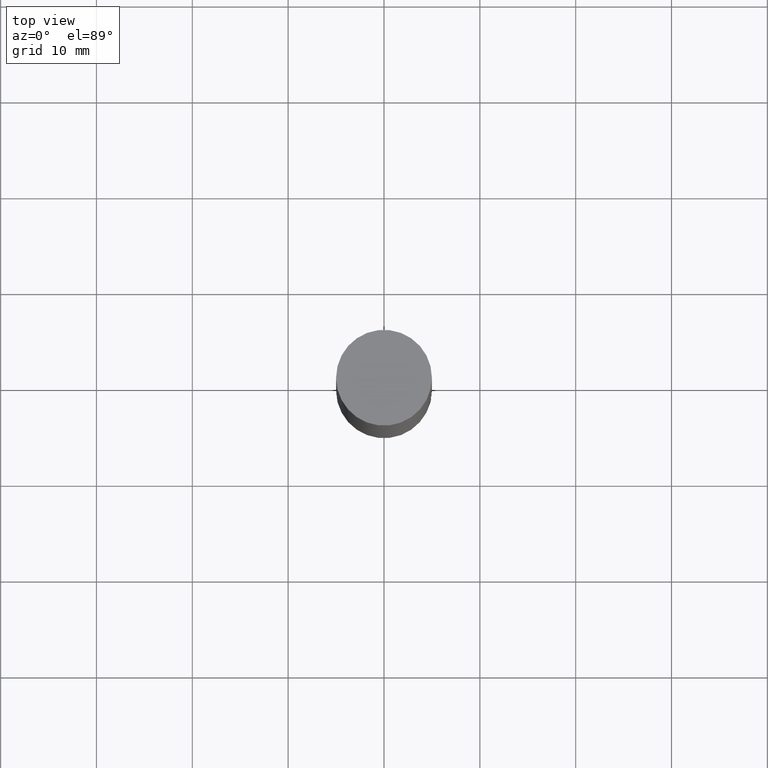
[diagram: clean part render]
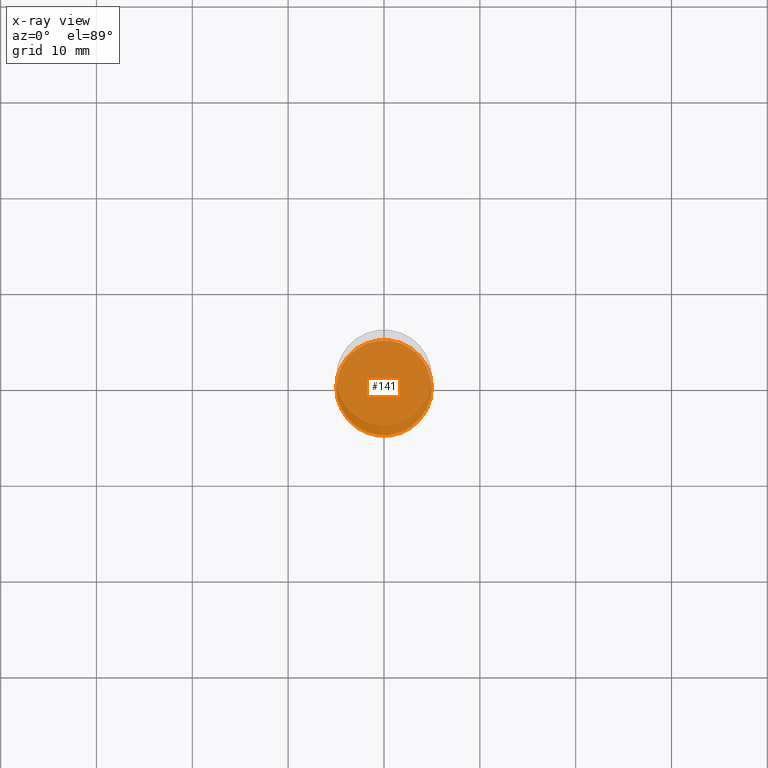
[diagram: x-ray — body ghosted, one internal face saturated and labeled with its STEP entity id]
A machine part, top view, then the same camera in x-ray: the body is ghosted and one INTERNAL B-rep face — a face not visible from any outside direction — is saturated and labeled: STEP entity #141.
In plain terms, the highlighted planar face has unit normal (-0, 0, 1).
Its self-contained STEP definition (entity closure, byte-faithful):
#46 = FACE_OUTER_BOUND ( 'NONE', #626, .T. ) ;
#58 = DIRECTION ( 'NONE',  ( 1.000000000000000000, -6.982962677686262766E-15, 0.000000000000000000 ) ) ;
#115 = EDGE_CURVE ( 'NONE', #677, #430, #120, .T. ) ;
#120 = CIRCLE ( 'NONE', #624, 0.1958499999999999963 ) ;
#141 = ADVANCED_FACE ( 'NONE', ( #46 ), #309, .F. ) ;
#269 = AXIS2_PLACEMENT_3D ( 'NONE', #654, #617, #295 ) ;
#277 = CIRCLE ( 'NONE', #269, 0.1958499999999999963 ) ;
#295 = DIRECTION ( 'NONE',  ( 1.000000000000000000, -6.982962677686262766E-15, 0.000000000000000000 ) ) ;
#309 = PLANE ( 'NONE',  #409 ) ;
#316 = DIRECTION ( 'NONE',  ( -2.445468806185136597E-29, 3.491481338843145583E-15, 1.000000000000000000 ) ) ;
#409 = AXIS2_PLACEMENT_3D ( 'NONE', #528, #632, #676 ) ;
#430 = VERTEX_POINT ( 'NONE', #556 ) ;
#459 = CARTESIAN_POINT ( 'NONE',  ( -0.1958499999999999963, -6.988245181031318870E-15, -2.401599999999999735 ) ) ;
#528 = CARTESIAN_POINT ( 'NONE',  ( 5.873037884934223228E-29, -8.385141583365697263E-15, -2.401599999999999735 ) ) ;
#556 = CARTESIAN_POINT ( 'NONE',  ( 0.1958499999999999963, -9.752754823790552857E-15, -2.401599999999999735 ) ) ;
#584 = CARTESIAN_POINT ( 'NONE',  ( 5.873037884934223228E-29, -8.385141583365697263E-15, -2.401599999999999735 ) ) ;
#605 = ORIENTED_EDGE ( 'NONE', *, *, #115, .F. ) ;
#617 = DIRECTION ( 'NONE',  ( -2.445468806185136597E-29, 3.491481338843145583E-15, 1.000000000000000000 ) ) ;
#624 = AXIS2_PLACEMENT_3D ( 'NONE', #584, #316, #58 ) ;
#626 = EDGE_LOOP ( 'NONE', ( #643, #605 ) ) ;
#632 = DIRECTION ( 'NONE',  ( -2.438088387897960049E-29, 3.491481338843145188E-15, 1.000000000000000000 ) ) ;
#637 = EDGE_CURVE ( 'NONE', #430, #677, #277, .T. ) ;
#643 = ORIENTED_EDGE ( 'NONE', *, *, #637, .F. ) ;
#654 = CARTESIAN_POINT ( 'NONE',  ( 5.873037884934223228E-29, -8.385141583365697263E-15, -2.401599999999999735 ) ) ;
#676 = DIRECTION ( 'NONE',  ( 1.000000000000000000, -6.982962677686265922E-15, 4.876176775795935793E-29 ) ) ;
#677 = VERTEX_POINT ( 'NONE', #459 ) ;